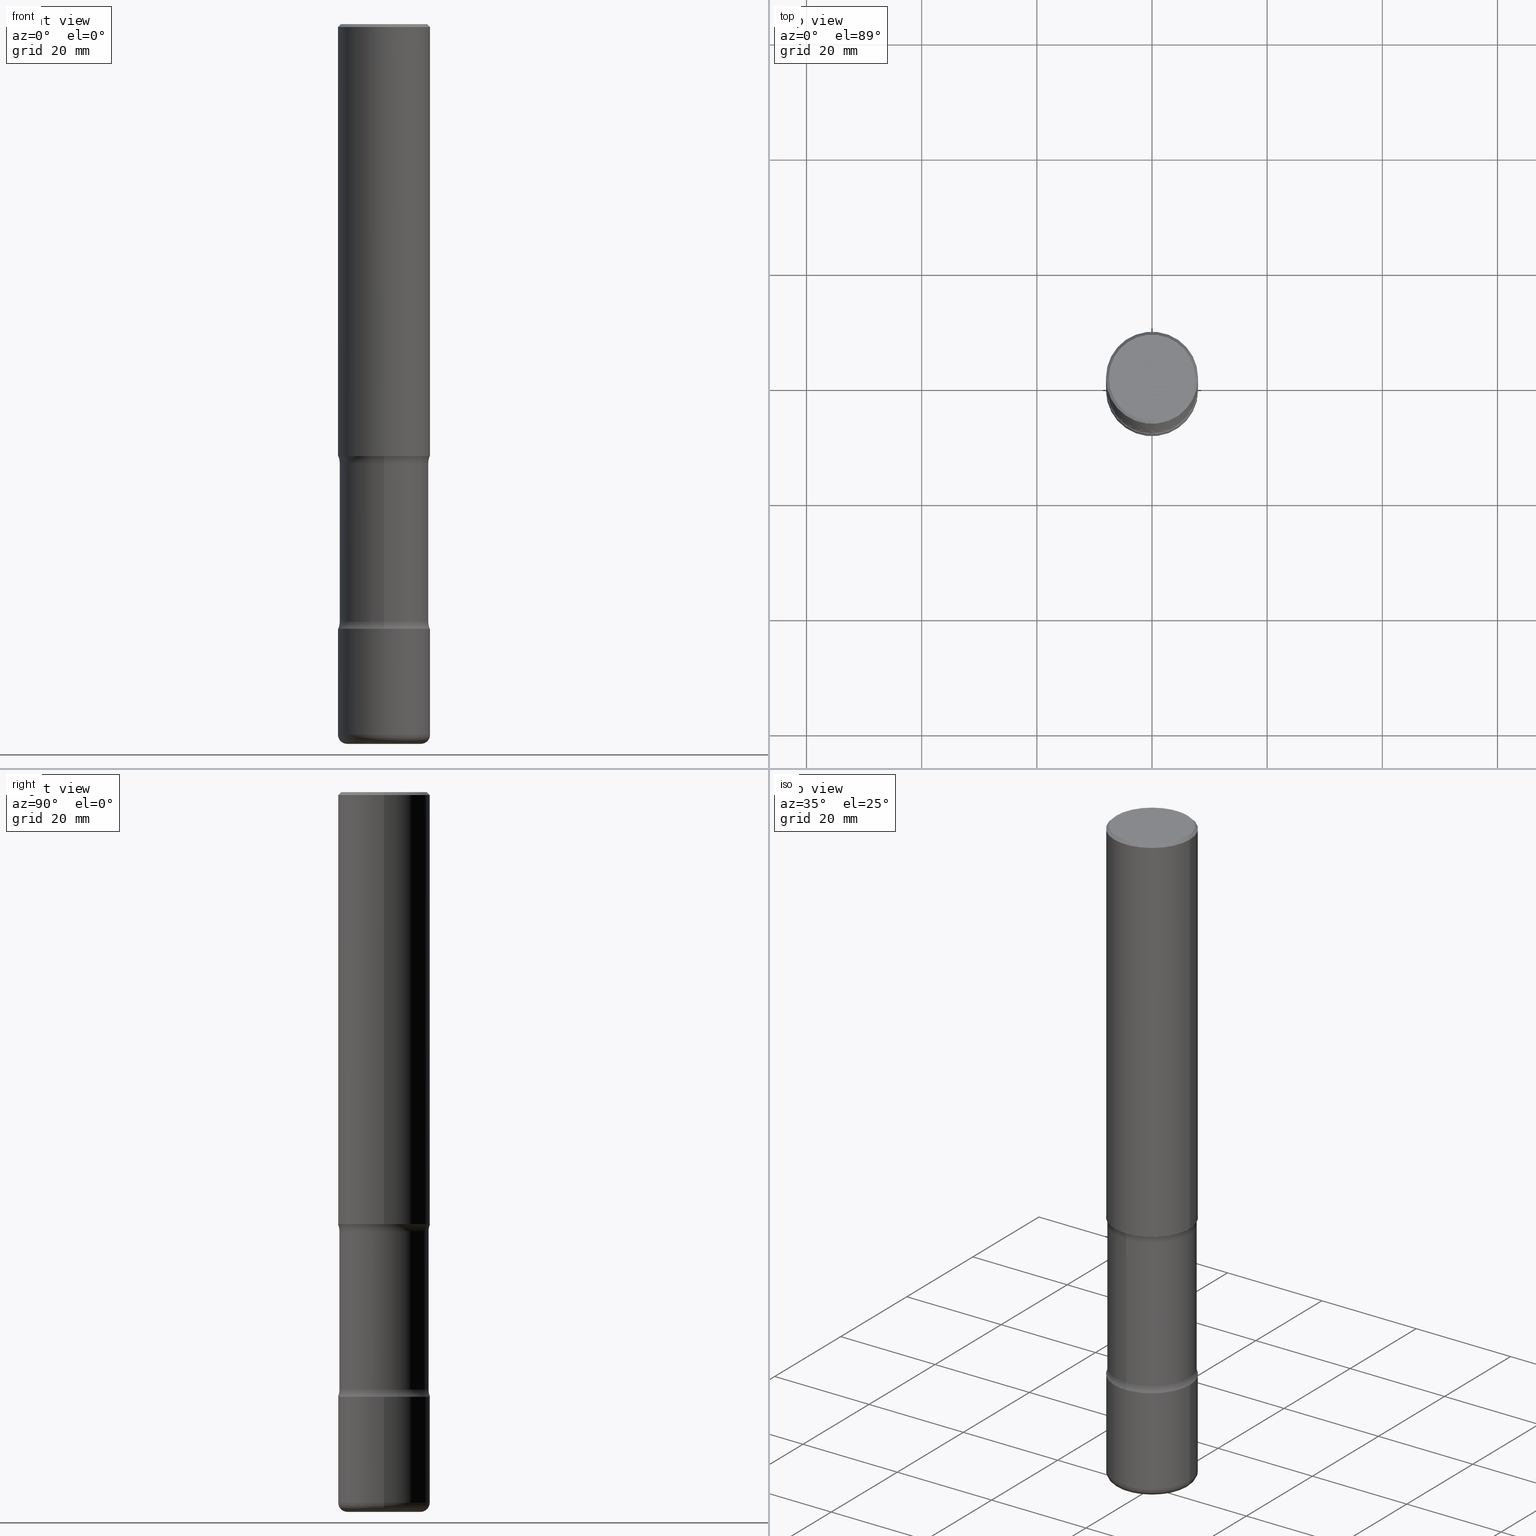
[diagram: canonical four-view strip — front | top / right | iso, engineering-drawing reading convention]
A machine part, canonical four-view strip (front | top / right | iso — engineering-drawing reading convention). The complete STEP part file that produces these views, byte-faithful:
ISO-10303-21;
HEADER;
FILE_DESCRIPTION (( 'STEP AP203' ),
    '1' );
FILE_NAME ('44967.STEP',
    '2024-03-02T04:06:10',
    ( '' ),
    ( '' ),
    'SwSTEP 2.0',
    'SolidWorks 2023',
    '' );
FILE_SCHEMA (( 'CONFIG_CONTROL_DESIGN' ));
ENDSEC;

DATA;
#1 = CARTESIAN_POINT ( 'NONE',  ( 9.989807918014305530E-29, -1.426279813349370412E-14, -4.085027743043726289 ) ) ;
#2 = AXIS2_PLACEMENT_3D ( 'NONE', #366, #327, #506 ) ;
#3 = ORIENTED_EDGE ( 'NONE', *, *, #88, .T. ) ;
#4 = ADVANCED_FACE ( 'NONE', ( #23 ), #205, .F. ) ;
#5 = DIRECTION ( 'NONE',  ( -1.000000000000000000, 7.105427357600990815E-15, 0.000000000000000000 ) ) ;
#6 =( NAMED_UNIT ( * ) SI_UNIT ( $, .STERADIAN. ) SOLID_ANGLE_UNIT ( ) );
#7 = EDGE_CURVE ( 'NONE', #151, #64, #279, .T. ) ;
#8 = AXIS2_PLACEMENT_3D ( 'NONE', #214, #400, #37 ) ;
#9 = TOROIDAL_SURFACE ( 'NONE', #196, 0.4300000000000000488, 0.1250000000000000000 ) ;
#10 = ORIENTED_EDGE ( 'NONE', *, *, #482, .T. ) ;
#11 = DIRECTION ( 'NONE',  ( -2.445468806185136877E-29, 3.491481338843145188E-15, 1.000000000000000000 ) ) ;
#12 = ORIENTED_EDGE ( 'NONE', *, *, #372, .F. ) ;
#13 = CARTESIAN_POINT ( 'NONE',  ( 7.202412656765479231E-29, -1.067802569216027239E-14, -3.001672256956273710 ) ) ;
#14 = CARTESIAN_POINT ( 'NONE',  ( 3.002673951405194792E-15, 0.4299999999999857825, -4.085027743043728066 ) ) ;
#15 = ORIENTED_EDGE ( 'NONE', *, *, #336, .T. ) ;
#16 = PRODUCT_RELATED_PRODUCT_CATEGORY ( 'detail', '', ( #516 ) ) ;
#17 = CLOSED_SHELL ( 'NONE', ( #329, #283, #200, #82, #66, #450 ) ) ;
#18 = AXIS2_PLACEMENT_3D ( 'NONE', #408, #103, #271 ) ;
#19 = ORIENTED_EDGE ( 'NONE', *, *, #472, .T. ) ;
#20 = EDGE_LOOP ( 'NONE', ( #521, #120 ) ) ;
#21 = CARTESIAN_POINT ( 'NONE',  ( 2.129803616694432752E-15, 0.3049999999999830069, -4.921299999999999564 ) ) ;
#22 = APPROVAL_STATUS ( 'not_yet_approved' ) ;
#23 = FACE_OUTER_BOUND ( 'NONE', #20, .T. ) ;
#24 = CARTESIAN_POINT ( 'NONE',  ( -0.3149500000000002298, -2.951883515780010590E-15, -2.952799999999999869 ) ) ;
#25 = APPROVAL_DATE_TIME ( #423, #398 ) ;
#26 = ADVANCED_FACE ( 'NONE', ( #132 ), #288, .T. ) ;
#27 = AXIS2_PLACEMENT_3D ( 'NONE', #71, #412, #536 ) ;
#28 = CARTESIAN_POINT ( 'NONE',  ( 3.002673951405166393E-15, 0.4299999999999893352, -3.001672256956275042 ) ) ;
#29 = EDGE_CURVE ( 'NONE', #455, #424, #147, .T. ) ;
#30 = DIRECTION ( 'NONE',  ( -6.982962677686264344E-15, -1.000000000000000000, 0.000000000000000000 ) ) ;
#31 = AXIS2_PLACEMENT_3D ( 'NONE', #402, #351, #40 ) ;
#32 = AXIS2_PLACEMENT_3D ( 'NONE', #452, #57, #323 ) ;
#33 = AXIS2_PLACEMENT_3D ( 'NONE', #301, #479, #438 ) ;
#34 = DIRECTION ( 'NONE',  ( 0.7071067811865472397, -7.319954787623254468E-15, -0.7071067811865477948 ) ) ;
#35 = FACE_OUTER_BOUND ( 'NONE', #70, .T. ) ;
#36 = ORIENTED_EDGE ( 'NONE', *, *, #173, .F. ) ;
#37 = DIRECTION ( 'NONE',  ( 6.982962677686265922E-15, 1.000000000000000000, -3.469564049740289220E-15 ) ) ;
#38 = TOROIDAL_SURFACE ( 'NONE', #363, 0.4300000000000000488, 0.1250000000000000000 ) ;
#39 = PERSON_AND_ORGANIZATION ( #90, #290 ) ;
#40 = DIRECTION ( 'NONE',  ( 1.000000000000000000, -6.982962677686267499E-15, 4.876053491004737710E-29 ) ) ;
#41 = EDGE_CURVE ( 'NONE', #72, #64, #560, .T. ) ;
#42 = DIRECTION ( 'NONE',  ( 1.000000000000000000, -6.982962677686264344E-15, 0.000000000000000000 ) ) ;
#43 = MANIFOLD_SOLID_BREP ( 'Body-Move/Copy2[2]', #75 ) ;
#44 =( NAMED_UNIT ( * ) PLANE_ANGLE_UNIT ( ) SI_UNIT ( $, .RADIAN. ) );
#45 = DIRECTION ( 'NONE',  ( 6.982962677686265922E-15, 1.000000000000000000, -3.316831827833398617E-15 ) ) ;
#46 = ORIENTED_EDGE ( 'NONE', *, *, #168, .T. ) ;
#47 = AXIS2_PLACEMENT_3D ( 'NONE', #193, #374, #510 ) ;
#48 = APPROVAL_PERSON_ORGANIZATION ( #95, #554, #53 ) ;
#49 = CARTESIAN_POINT ( 'NONE',  ( 4.890937612370289799E-31, -6.982962677686315028E-17, -0.02000000000000006981 ) ) ;
#50 = DIRECTION ( 'NONE',  ( 1.000000000000000000, -6.982962677686267499E-15, 4.876053491004737710E-29 ) ) ;
#51 = CARTESIAN_POINT ( 'NONE',  ( 1.010932349788873450E-28, -1.443343470664368071E-14, -4.133899999999999686 ) ) ;
#52 = DIRECTION ( 'NONE',  ( 1.000000000000000000, -6.982962677686265922E-15, 4.876176775795935793E-29 ) ) ;
#53 = APPROVAL_ROLE ( '' ) ;
#54 = VERTEX_POINT ( 'NONE', #255 ) ;
#55 = CC_DESIGN_PERSON_AND_ORGANIZATION_ASSIGNMENT ( #80, #546, ( #486 ) ) ;
#56 = EDGE_LOOP ( 'NONE', ( #504, #500, #354, #442 ) ) ;
#57 = DIRECTION ( 'NONE',  ( -2.567425907890857890E-29, 3.316831827833398617E-15, 1.000000000000000000 ) ) ;
#58 = EDGE_LOOP ( 'NONE', ( #210, #322, #136, #219 ) ) ;
#59 = CARTESIAN_POINT ( 'NONE',  ( -2.160713844398075521E-15, -0.3149500000000107769, -2.952799999999998537 ) ) ;
#60 = TOROIDAL_SURFACE ( 'NONE', #264, 0.4299999999999999933, 0.1249999999999999029 ) ;
#61 = CARTESIAN_POINT ( 'NONE',  ( -2.126582866859130004E-15, -0.3050000000000142597, -4.085027743043725401 ) ) ;
#62 = TOROIDAL_SURFACE ( 'NONE', #269, 0.2519500000000002848, 0.06299999999999993106 ) ;
#63 = DATE_TIME_ROLE ( 'classification_date' ) ;
#64 = VERTEX_POINT ( 'NONE', #394 ) ;
#65 = ORIENTED_EDGE ( 'NONE', *, *, #128, .F. ) ;
#66 = ADVANCED_FACE ( 'NONE', ( #35 ), #470, .T. ) ;
#67 = CARTESIAN_POINT ( 'NONE',  ( -0.3149500000000002298, 2.237854346276437168E-15, -1.549218606675783517E-29 ) ) ;
#68 = COORDINATED_UNIVERSAL_TIME_OFFSET ( 5, 0, .BEHIND. ) ;
#69 = VERTEX_POINT ( 'NONE', #512 ) ;
#70 = EDGE_LOOP ( 'NONE', ( #460, #538, #239, #543 ) ) ;
#71 = CARTESIAN_POINT ( 'NONE',  ( 0.000000000000000000, 0.000000000000000000, 0.000000000000000000 ) ) ;
#72 = VERTEX_POINT ( 'NONE', #427 ) ;
#73 = ORIENTED_EDGE ( 'NONE', *, *, #128, .T. ) ;
#74 = FACE_OUTER_BOUND ( 'NONE', #275, .T. ) ;
#75 = CLOSED_SHELL ( 'NONE', ( #533, #26, #359, #4, #258, #206 ) ) ;
#76 = PERSON_AND_ORGANIZATION_ROLE ( 'creator' ) ;
#77 = LINE ( 'NONE', #559, #101 ) ;
#78 = CIRCLE ( 'NONE', #289, 0.1250000000000000000 ) ;
#79 = APPROVAL_PERSON_ORGANIZATION ( #232, #398, #370 ) ;
#80 = PERSON_AND_ORGANIZATION ( #90, #290 ) ;
#81 = DIRECTION ( 'NONE',  ( -2.445468806185136597E-29, 3.491481338843145583E-15, 1.000000000000000000 ) ) ;
#82 = ADVANCED_FACE ( 'NONE', ( #122 ), #123, .T. ) ;
#83 = DIRECTION ( 'NONE',  ( 6.982962677686266711E-15, 1.000000000000000000, -3.582751467100673306E-15 ) ) ;
#84 = ORIENTED_EDGE ( 'NONE', *, *, #446, .F. ) ;
#85 = DIRECTION ( 'NONE',  ( -2.445468806185136597E-29, 3.491481338843145583E-15, 1.000000000000000000 ) ) ;
#86 = DIRECTION ( 'NONE',  ( 2.445468806185136597E-29, -3.491481338843145583E-15, -1.000000000000000000 ) ) ;
#87 = CIRCLE ( 'NONE', #437, 0.2949499999999998234 ) ;
#88 = EDGE_CURVE ( 'NONE', #368, #151, #164, .T. ) ;
#89 = ADVANCED_FACE ( 'NONE', ( #137 ), #60, .F. ) ;
#90 = PERSON ( 'UNSPECIFIED', 'UNSPECIFIED', 'UNSPECIFIED', ('UNSPECIFIED'), ('UNSPECIFIED'), ('UNSPECIFIED') ) ;
#91 = DIRECTION ( 'NONE',  ( -2.445468806185136597E-29, 3.491481338843145583E-15, 1.000000000000000000 ) ) ;
#92 = CIRCLE ( 'NONE', #530, 0.1250000000000000000 ) ;
#93 = PRODUCT_DEFINITION ( 'UNKNOWN', '', #486, #337 ) ;
#94 = CIRCLE ( 'NONE', #241, 0.06299999999999994493 ) ;
#95 = PERSON_AND_ORGANIZATION ( #90, #290 ) ;
#96 = CARTESIAN_POINT ( 'NONE',  ( -2.092451889320195532E-15, -0.3050000000000170908, -4.921299999999997787 ) ) ;
#97 = FACE_OUTER_BOUND ( 'NONE', #159, .T. ) ;
#98 = DIRECTION ( 'NONE',  ( -2.445468806185136597E-29, 3.491481338843145583E-15, 1.000000000000000000 ) ) ;
#99 = ORIENTED_EDGE ( 'NONE', *, *, #353, .T. ) ;
#100 = CARTESIAN_POINT ( 'NONE',  ( 2.129803616694410664E-15, 0.3049999999999857270, -4.085027743043728066 ) ) ;
#101 = VECTOR ( 'NONE', #198, 39.37007874015748143 ) ;
#102 = LOCAL_TIME ( 23, 6, 10.00000000000000000, #68 ) ;
#103 = DIRECTION ( 'NONE',  ( 2.567425907890858451E-29, -3.316831827833398617E-15, -1.000000000000000000 ) ) ;
#104 = CARTESIAN_POINT ( 'NONE',  ( 0.3149500000000002298, -2.199284095337291449E-15, 1.535751875536930971E-29 ) ) ;
#105 = EDGE_CURVE ( 'NONE', #542, #72, #87, .T. ) ;
#106 = ORIENTED_EDGE ( 'NONE', *, *, #213, .F. ) ;
#107 = FACE_OUTER_BOUND ( 'NONE', #371, .T. ) ;
#108 = PLANE ( 'NONE',  #280 ) ;
#109 = DIRECTION ( 'NONE',  ( -0.7071067811865472397, 2.468850131082253905E-15, -0.7071067811865477948 ) ) ;
#110 = CARTESIAN_POINT ( 'NONE',  ( -2.160713844398043177E-15, -0.3149500000000144961, -4.133899999999998798 ) ) ;
#111 = EDGE_CURVE ( 'NONE', #267, #455, #92, .T. ) ;
#112 = CIRCLE ( 'NONE', #8, 0.3149500000000003408 ) ;
#113 = DIRECTION ( 'NONE',  ( 2.567425907890858451E-29, -3.316831827833398617E-15, -1.000000000000000000 ) ) ;
#114 = DIRECTION ( 'NONE',  ( -2.445468806185136597E-29, 3.491481338843145583E-15, 1.000000000000000000 ) ) ;
#115 = CIRCLE ( 'NONE', #508, 0.1249999999999999029 ) ;
#116 = PERSON_AND_ORGANIZATION_ROLE ( 'classification_officer' ) ;
#117 = CIRCLE ( 'NONE', #380, 0.3149500000000002853 ) ;
#118 = EDGE_LOOP ( 'NONE', ( #160, #364 ) ) ;
#119 = EDGE_LOOP ( 'NONE', ( #325, #185, #451, #84 ) ) ;
#120 = ORIENTED_EDGE ( 'NONE', *, *, #162, .T. ) ;
#121 = COORDINATED_UNIVERSAL_TIME_OFFSET ( 5, 0, .BEHIND. ) ;
#122 = FACE_OUTER_BOUND ( 'NONE', #409, .T. ) ;
#123 = TOROIDAL_SURFACE ( 'NONE', #514, 0.2519500000000002848, 0.06299999999999993106 ) ;
#124 = DATE_AND_TIME ( #553, #317 ) ;
#125 = CARTESIAN_POINT ( 'NONE',  ( 0.000000000000000000, 0.000000000000000000, 0.000000000000000000 ) ) ;
#126 = AXIS2_PLACEMENT_3D ( 'NONE', #411, #113, #156 ) ;
#127 = CARTESIAN_POINT ( 'NONE',  ( 4.890937612370289799E-31, -6.982962677686315028E-17, -0.02000000000000006981 ) ) ;
#128 = EDGE_CURVE ( 'NONE', #367, #266, #413, .T. ) ;
#129 = APPROVAL_PERSON_ORGANIZATION ( #201, #439, #463 ) ;
#130 = PRODUCT_DEFINITION_SHAPE ( 'NONE', 'NONE',  #93 ) ;
#131 = CARTESIAN_POINT ( 'NONE',  ( 1.213091465776199422E-28, -1.704510808787969270E-14, -4.921299999999998676 ) ) ;
#132 = FACE_OUTER_BOUND ( 'NONE', #119, .T. ) ;
#133 = CC_DESIGN_DATE_AND_TIME_ASSIGNMENT ( #282, #63, ( #212 ) ) ;
#134 = AXIS2_PLACEMENT_3D ( 'NONE', #125, #338, #469 ) ;
#135 = LOCAL_TIME ( 23, 6, 10.00000000000000000, #503 ) ;
#136 = ORIENTED_EDGE ( 'NONE', *, *, #432, .F. ) ;
#137 = FACE_OUTER_BOUND ( 'NONE', #285, .T. ) ;
#138 = CARTESIAN_POINT ( 'NONE',  ( 9.989807918014305530E-29, -1.426279813349370412E-14, -4.085027743043726289 ) ) ;
#139 = FACE_OUTER_BOUND ( 'NONE', #491, .T. ) ;
#140 = LINE ( 'NONE', #96, #328 ) ;
#141 = AXIS2_PLACEMENT_3D ( 'NONE', #167, #297, #476 ) ;
#142 = CC_DESIGN_APPROVAL ( #554, ( #93 ) ) ;
#143 = DIRECTION ( 'NONE',  ( 6.982962677686265922E-15, 1.000000000000000000, -3.316831827833398617E-15 ) ) ;
#144 = FACE_OUTER_BOUND ( 'NONE', #419, .T. ) ;
#145 = ORIENTED_EDGE ( 'NONE', *, *, #416, .F. ) ;
#146 = CARTESIAN_POINT ( 'NONE',  ( 7.220980290903470182E-29, -1.030964609733603853E-14, -2.952799999999999869 ) ) ;
#147 = CIRCLE ( 'NONE', #183, 0.3049999999999999933 ) ;
#148 = AXIS2_PLACEMENT_3D ( 'NONE', #13, #149, #281 ) ;
#149 = DIRECTION ( 'NONE',  ( 2.567425907890858451E-29, -3.316831827833398617E-15, -1.000000000000000000 ) ) ;
#150 = DIRECTION ( 'NONE',  ( -1.000000000000000000, 6.982962677686265922E-15, -4.876176775795935793E-29 ) ) ;
#151 = VERTEX_POINT ( 'NONE', #260 ) ;
#152 = EDGE_CURVE ( 'NONE', #270, #360, #483, .T. ) ;
#153 = VERTEX_POINT ( 'NONE', #172 ) ;
#154 = DIRECTION ( 'NONE',  ( 6.860497997771531562E-15, 1.000000000000000000, 0.000000000000000000 ) ) ;
#155 = FACE_OUTER_BOUND ( 'NONE', #381, .T. ) ;
#156 = DIRECTION ( 'NONE',  ( 6.982962677686265922E-15, 1.000000000000000000, -3.469564049740289220E-15 ) ) ;
#157 = AXIS2_PLACEMENT_3D ( 'NONE', #314, #188, #369 ) ;
#158 = ORIENTED_EDGE ( 'NONE', *, *, #111, .F. ) ;
#159 = EDGE_LOOP ( 'NONE', ( #73, #99, #558, #237 ) ) ;
#160 = ORIENTED_EDGE ( 'NONE', *, *, #152, .F. ) ;
#161 = EDGE_LOOP ( 'NONE', ( #222, #3, #464, #477 ) ) ;
#162 = EDGE_CURVE ( 'NONE', #72, #542, #228, .T. ) ;
#163 = DIRECTION ( 'NONE',  ( 6.982962677686265133E-15, 1.000000000000000000, -3.582751467100672517E-15 ) ) ;
#164 = LINE ( 'NONE', #247, #261 ) ;
#165 = AXIS2_PLACEMENT_3D ( 'NONE', #529, #98, #524 ) ;
#166 = CIRCLE ( 'NONE', #148, 0.3050000000000001044 ) ;
#167 = CARTESIAN_POINT ( 'NONE',  ( 1.010932349788873450E-28, -1.443343470664368071E-14, -4.133899999999999686 ) ) ;
#168 = EDGE_CURVE ( 'NONE', #331, #54, #112, .T. ) ;
#169 = DIRECTION ( 'NONE',  ( 6.982962677686265922E-15, 1.000000000000000000, -3.316831827833398617E-15 ) ) ;
#170 = DIRECTION ( 'NONE',  ( 1.000000000000000000, -6.982962677686258822E-15, 0.000000000000000000 ) ) ;
#171 = CIRCLE ( 'NONE', #141, 0.3149500000000001743 ) ;
#172 = CARTESIAN_POINT ( 'NONE',  ( -2.126582866859160770E-15, -0.3050000000000108180, -3.001672256956272378 ) ) ;
#173 = EDGE_CURVE ( 'NONE', #153, #455, #140, .T. ) ;
#174 = DIRECTION ( 'NONE',  ( -2.445468806185136877E-29, 3.491481338843145188E-15, 1.000000000000000000 ) ) ;
#175 = AXIS2_PLACEMENT_3D ( 'NONE', #429, #81, #208 ) ;
#176 = AXIS2_PLACEMENT_3D ( 'NONE', #478, #528, #397 ) ;
#177 = DIRECTION ( 'NONE',  ( 1.000000000000000000, -6.860497997771530774E-15, 4.842937719270450124E-29 ) ) ;
#178 = EDGE_CURVE ( 'NONE', #360, #266, #94, .T. ) ;
#179 = CARTESIAN_POINT ( 'NONE',  ( 9.983847599202101310E-29, -1.427133364927305841E-14, -4.085027743043726289 ) ) ;
#180 = DIRECTION ( 'NONE',  ( -6.982962677686266711E-15, -1.000000000000000000, 0.000000000000000000 ) ) ;
#181 = DIRECTION ( 'NONE',  ( 2.438088387897960049E-29, -3.491481338843145188E-15, -1.000000000000000000 ) ) ;
#182 = ORIENTED_EDGE ( 'NONE', *, *, #223, .T. ) ;
#183 = AXIS2_PLACEMENT_3D ( 'NONE', #252, #433, #83 ) ;
#184 = CIRCLE ( 'NONE', #2, 0.3050000000000001044 ) ;
#185 = ORIENTED_EDGE ( 'NONE', *, *, #41, .T. ) ;
#186 = EDGE_CURVE ( 'NONE', #64, #151, #207, .T. ) ;
#187 = CARTESIAN_POINT ( 'NONE',  ( -0.2519500000000002848, -1.505861206616321089E-14, -4.921300000000000452 ) ) ;
#188 = DIRECTION ( 'NONE',  ( 2.567425907890858451E-29, -3.316831827833398617E-15, -1.000000000000000000 ) ) ;
#189 = DIRECTION ( 'NONE',  ( -2.445468806185136597E-29, 3.491481338843145583E-15, 1.000000000000000000 ) ) ;
#190 = APPROVAL_STATUS ( 'not_yet_approved' ) ;
#191 = CARTESIAN_POINT ( 'NONE',  ( 0.000000000000000000, 0.000000000000000000, 0.000000000000000000 ) ) ;
#192 = DIRECTION ( 'NONE',  ( -6.982962677686266711E-15, -1.000000000000000000, 3.491481338843145583E-15 ) ) ;
#193 = CARTESIAN_POINT ( 'NONE',  ( -1.777441011589207821E-28, -5.987123526913351661E-14, -4.921299999999999564 ) ) ;
#194 = ORIENTED_EDGE ( 'NONE', *, *, #7, .F. ) ;
#195 = ORIENTED_EDGE ( 'NONE', *, *, #178, .F. ) ;
#196 = AXIS2_PLACEMENT_3D ( 'NONE', #138, #435, #143 ) ;
#197 = COORDINATED_UNIVERSAL_TIME_OFFSET ( 5, 0, .BEHIND. ) ;
#198 = DIRECTION ( 'NONE',  ( -2.445468806185136877E-29, 3.491481338843145188E-15, 1.000000000000000000 ) ) ;
#199 = ORIENTED_EDGE ( 'NONE', *, *, #111, .T. ) ;
#200 = ADVANCED_FACE ( 'NONE', ( #480 ), #440, .T. ) ;
#201 = PERSON_AND_ORGANIZATION ( #90, #290 ) ;
#202 = CYLINDRICAL_SURFACE ( 'NONE', #218, 0.3050000000000000488 ) ;
#203 = ADVANCED_FACE ( 'NONE', ( #284 ), #462, .T. ) ;
#204 = DATE_TIME_ROLE ( 'creation_date' ) ;
#205 = PLANE ( 'NONE',  #395 ) ;
#206 = ADVANCED_FACE ( 'NONE', ( #155 ), #545, .T. ) ;
#207 = CIRCLE ( 'NONE', #176, 0.3149499999999998967 ) ;
#208 = DIRECTION ( 'NONE',  ( 1.000000000000000000, -6.982962677686267499E-15, 4.876176775795935232E-29 ) ) ;
#209 = DIRECTION ( 'NONE',  ( 7.105427357601001859E-15, 1.000000000000000000, -3.491481338843145583E-15 ) ) ;
#210 = ORIENTED_EDGE ( 'NONE', *, *, #213, .T. ) ;
#211 = AXIS2_PLACEMENT_3D ( 'NONE', #49, #225, #505 ) ;
#212 = SECURITY_CLASSIFICATION ( '', '', #238 ) ;
#213 = EDGE_CURVE ( 'NONE', #69, #153, #184, .T. ) ;
#214 = CARTESIAN_POINT ( 'NONE',  ( 7.076936758078842679E-29, -1.051592463478965167E-14, -2.952799999999999869 ) ) ;
#215 = DIRECTION ( 'NONE',  ( 2.567425907890858451E-29, -3.316831827833398617E-15, -1.000000000000000000 ) ) ;
#216 = CARTESIAN_POINT ( 'NONE',  ( 1.203488563587891594E-28, -1.718262711284877655E-14, -4.921300000000000452 ) ) ;
#217 = CC_DESIGN_PERSON_AND_ORGANIZATION_ASSIGNMENT ( #291, #324, ( #486 ) ) ;
#218 = AXIS2_PLACEMENT_3D ( 'NONE', #131, #254, #163 ) ;
#219 = ORIENTED_EDGE ( 'NONE', *, *, #454, .F. ) ;
#220 = DIRECTION ( 'NONE',  ( 2.567425907890857890E-29, -3.316831827833398617E-15, -1.000000000000000000 ) ) ;
#221 = DIRECTION ( 'NONE',  ( -2.445468806185136877E-29, 3.491481338843145188E-15, 1.000000000000000000 ) ) ;
#222 = ORIENTED_EDGE ( 'NONE', *, *, #292, .T. ) ;
#223 = EDGE_CURVE ( 'NONE', #356, #424, #78, .T. ) ;
#224 = EDGE_LOOP ( 'NONE', ( #12, #273, #46, #489 ) ) ;
#225 = DIRECTION ( 'NONE',  ( 2.445468806185136597E-29, -3.491481338843145583E-15, -1.000000000000000000 ) ) ;
#226 = CARTESIAN_POINT ( 'NONE',  ( -0.3149500000000002853, -1.472480944222522007E-14, -4.858300000000000729 ) ) ;
#227 = ORIENTED_EDGE ( 'NONE', *, *, #372, .T. ) ;
#228 = CIRCLE ( 'NONE', #31, 0.2949499999999998234 ) ;
#229 = AXIS2_PLACEMENT_3D ( 'NONE', #245, #401, #42 ) ;
#230 = EDGE_CURVE ( 'NONE', #367, #420, #319, .T. ) ;
#231 = CARTESIAN_POINT ( 'NONE',  ( 1.203488563587891594E-28, -1.718262711284877655E-14, -4.921300000000000452 ) ) ;
#232 = PERSON_AND_ORGANIZATION ( #90, #290 ) ;
#233 = ORIENTED_EDGE ( 'NONE', *, *, #29, .T. ) ;
#234 = MANIFOLD_SOLID_BREP ( 'Body-Move/Copy2[4]', #315 ) ;
#235 = DIRECTION ( 'NONE',  ( 6.982962677686265922E-15, 1.000000000000000000, -3.316831827833398617E-15 ) ) ;
#236 = CALENDAR_DATE ( 2024, 1, 3 ) ;
#237 = ORIENTED_EDGE ( 'NONE', *, *, #230, .F. ) ;
#238 = SECURITY_CLASSIFICATION_LEVEL ( 'unclassified' ) ;
#239 = ORIENTED_EDGE ( 'NONE', *, *, #230, .T. ) ;
#240 = ORIENTED_EDGE ( 'NONE', *, *, #488, .T. ) ;
#241 = AXIS2_PLACEMENT_3D ( 'NONE', #348, #209, #5 ) ;
#242 = CALENDAR_DATE ( 2024, 1, 3 ) ;
#243 = MANIFOLD_SOLID_BREP ( 'Body-Move/Copy2[1]', #17 ) ;
#244 = CARTESIAN_POINT ( 'NONE',  ( -0.3149500000000001743, -1.346019490129623240E-14, -4.133899999999999686 ) ) ;
#245 = CARTESIAN_POINT ( 'NONE',  ( 7.220980290903470182E-29, -1.030964609733603853E-14, -2.952799999999999869 ) ) ;
#246 = CALENDAR_DATE ( 2024, 1, 3 ) ;
#247 = CARTESIAN_POINT ( 'NONE',  ( -0.3149500000000000077, 2.237854346276435590E-15, -1.549218606675782676E-29 ) ) ;
#248 = EDGE_CURVE ( 'NONE', #368, #525, #389, .T. ) ;
#249 = CARTESIAN_POINT ( 'NONE',  ( 1.188082110108925210E-28, -1.696266378850165605E-14, -4.858300000000000729 ) ) ;
#250 = CARTESIAN_POINT ( 'NONE',  ( 1.010932349788873450E-28, -1.443343470664368071E-14, -4.133899999999999686 ) ) ;
#251 = CIRCLE ( 'NONE', #378, 0.3149500000000001743 ) ;
#252 = CARTESIAN_POINT ( 'NONE',  ( 9.983847599202101310E-29, -1.427133364927305841E-14, -4.085027743043726289 ) ) ;
#253 = CARTESIAN_POINT ( 'NONE',  ( 1.188082110108925210E-28, -1.696266378850165605E-14, -4.858300000000000729 ) ) ;
#254 = DIRECTION ( 'NONE',  ( 2.567425907890858451E-29, -3.316831827833398617E-15, -1.000000000000000000 ) ) ;
#255 = CARTESIAN_POINT ( 'NONE',  ( 2.199284095337362446E-15, 0.3149499999999899047, -2.952800000000000757 ) ) ;
#256 = ORIENTED_EDGE ( 'NONE', *, *, #383, .F. ) ;
#257 =( CONVERSION_BASED_UNIT ( 'INCH', #259 ) LENGTH_UNIT ( ) NAMED_UNIT ( #293 ) );
#258 = ADVANCED_FACE ( 'NONE', ( #502 ), #108, .F. ) ;
#259 = LENGTH_MEASURE_WITH_UNIT ( LENGTH_MEASURE( 0.02539999999999999897 ), #532 );
#260 = CARTESIAN_POINT ( 'NONE',  ( -0.3149499999999998967, 2.129454468560425784E-15, -0.02000000000000006981 ) ) ;
#261 = VECTOR ( 'NONE', #174, 39.37007874015748143 ) ;
#262 = CONICAL_SURFACE ( 'NONE', #211, 0.3149499999999998967, 0.7853981633974479459 ) ;
#263 = CC_DESIGN_SECURITY_CLASSIFICATION ( #212, ( #486 ) ) ;
#264 = AXIS2_PLACEMENT_3D ( 'NONE', #444, #308, #45 ) ;
#265 = CC_DESIGN_PERSON_AND_ORGANIZATION_ASSIGNMENT ( #335, #76, ( #93 ) ) ;
#266 = VERTEX_POINT ( 'NONE', #226 ) ;
#267 = VERTEX_POINT ( 'NONE', #110 ) ;
#268 = PLANE ( 'NONE',  #32 ) ;
#269 = AXIS2_PLACEMENT_3D ( 'NONE', #253, #352, #393 ) ;
#270 = VERTEX_POINT ( 'NONE', #471 ) ;
#271 = DIRECTION ( 'NONE',  ( 6.982962677686264344E-15, 1.000000000000000000, -3.469564049740291192E-15 ) ) ;
#272 = DIRECTION ( 'NONE',  ( -2.438088387897960049E-29, 3.491481338843145188E-15, 1.000000000000000000 ) ) ;
#273 = ORIENTED_EDGE ( 'NONE', *, *, #392, .T. ) ;
#274 = DIRECTION ( 'NONE',  ( 2.567425907890858451E-29, -3.316831827833398617E-15, -1.000000000000000000 ) ) ;
#275 = EDGE_LOOP ( 'NONE', ( #309, #311, #65, #145 ) ) ;
#276 = EDGE_CURVE ( 'NONE', #267, #356, #171, .T. ) ;
#277 = DIRECTION ( 'NONE',  ( 1.000000000000000000, -6.982962677686292743E-15, 0.000000000000000000 ) ) ;
#278 = COORDINATED_UNIVERSAL_TIME_OFFSET ( 5, 0, .BEHIND. ) ;
#279 = CIRCLE ( 'NONE', #388, 0.3149499999999998967 ) ;
#280 = AXIS2_PLACEMENT_3D ( 'NONE', #146, #272, #52 ) ;
#281 = DIRECTION ( 'NONE',  ( 6.982962677686265133E-15, 1.000000000000000000, -3.582751467100671728E-15 ) ) ;
#282 = DATE_AND_TIME ( #246, #135 ) ;
#283 = ADVANCED_FACE ( 'NONE', ( #74 ), #62, .T. ) ;
#284 = FACE_OUTER_BOUND ( 'NONE', #414, .T. ) ;
#285 = EDGE_LOOP ( 'NONE', ( #404, #106, #240, #19 ) ) ;
#286 = ORIENTED_EDGE ( 'NONE', *, *, #88, .F. ) ;
#287 = APPROVAL_DATE_TIME ( #468, #554 ) ;
#288 = CONICAL_SURFACE ( 'NONE', #340, 0.3149499999999998967, 0.7853981633974479459 ) ;
#289 = AXIS2_PLACEMENT_3D ( 'NONE', #14, #498, #180 ) ;
#290 = ORGANIZATION ( 'UNSPECIFIED', 'UNSPECIFIED', '' ) ;
#291 = PERSON_AND_ORGANIZATION ( #90, #290 ) ;
#292 = EDGE_CURVE ( 'NONE', #525, #368, #550, .T. ) ;
#293 = DIMENSIONAL_EXPONENTS ( 1.000000000000000000, 0.000000000000000000, 0.000000000000000000, 0.000000000000000000, 0.000000000000000000, 0.000000000000000000, 0.000000000000000000 ) ;
#294 = CARTESIAN_POINT ( 'NONE',  ( 1.188082110108925210E-28, -1.696266378850165605E-14, -4.858300000000000729 ) ) ;
#295 = ORIENTED_EDGE ( 'NONE', *, *, #551, .F. ) ;
#296 = APPROVAL_STATUS ( 'not_yet_approved' ) ;
#297 = DIRECTION ( 'NONE',  ( 2.567425907890858451E-29, -3.316831827833398617E-15, -1.000000000000000000 ) ) ;
#298 = CARTESIAN_POINT ( 'NONE',  ( 0.3149500000000002298, -1.250893019267332998E-14, -2.952799999999999869 ) ) ;
#299 = DIRECTION ( 'NONE',  ( 2.438088387897960049E-29, -3.491481338843145188E-15, -1.000000000000000000 ) ) ;
#300 = ADVANCED_FACE ( 'NONE', ( #144 ), #38, .F. ) ;
#301 = CARTESIAN_POINT ( 'NONE',  ( 0.000000000000000000, 0.000000000000000000, 0.000000000000000000 ) ) ;
#302 = PERSON_AND_ORGANIZATION_ROLE ( 'design_owner' ) ;
#303 = VECTOR ( 'NONE', #34, 39.37007874015748143 ) ;
#304 = AXIS2_PLACEMENT_3D ( 'NONE', #540, #114, #358 ) ;
#305 = CC_DESIGN_PERSON_AND_ORGANIZATION_ASSIGNMENT ( #384, #116, ( #212 ) ) ;
#306 = DIRECTION ( 'NONE',  ( 1.000000000000000000, -6.982962677686263555E-15, 0.000000000000000000 ) ) ;
#307 = DIRECTION ( 'NONE',  ( 1.000000000000000000, -6.982962677686258822E-15, 0.000000000000000000 ) ) ;
#308 = DIRECTION ( 'NONE',  ( 2.567425907890858451E-29, -3.316831827833398617E-15, -1.000000000000000000 ) ) ;
#309 = ORIENTED_EDGE ( 'NONE', *, *, #152, .T. ) ;
#310 = FACE_OUTER_BOUND ( 'NONE', #349, .T. ) ;
#311 = ORIENTED_EDGE ( 'NONE', *, *, #178, .T. ) ;
#312 = DIRECTION ( 'NONE',  ( 2.567425907890858451E-29, -3.316831827833398617E-15, -1.000000000000000000 ) ) ;
#313 = FACE_OUTER_BOUND ( 'NONE', #56, .T. ) ;
#314 = CARTESIAN_POINT ( 'NONE',  ( 1.213091465776199422E-28, -1.704510808787969270E-14, -4.921299999999998676 ) ) ;
#315 = CLOSED_SHELL ( 'NONE', ( #526, #320, #343, #89, #345, #465, #300, #203 ) ) ;
#316 = AXIS2_PLACEMENT_3D ( 'NONE', #191, #441, #410 ) ;
#317 = LOCAL_TIME ( 23, 6, 10.00000000000000000, #197 ) ;
#318 = FACE_OUTER_BOUND ( 'NONE', #362, .T. ) ;
#319 = LINE ( 'NONE', #104, #330 ) ;
#320 = ADVANCED_FACE ( 'NONE', ( #139 ), #9, .F. ) ;
#321 = EDGE_LOOP ( 'NONE', ( #552, #492 ) ) ;
#322 = ORIENTED_EDGE ( 'NONE', *, *, #173, .T. ) ;
#323 = DIRECTION ( 'NONE',  ( -6.982962677686265922E-15, -1.000000000000000000, 3.316831827833398617E-15 ) ) ;
#324 = PERSON_AND_ORGANIZATION_ROLE ( 'design_supplier' ) ;
#325 = ORIENTED_EDGE ( 'NONE', *, *, #162, .F. ) ;
#326 = DIRECTION ( 'NONE',  ( 2.567425907890858451E-29, -3.316831827833398617E-15, -1.000000000000000000 ) ) ;
#327 = DIRECTION ( 'NONE',  ( 2.567425907890858451E-29, -3.316831827833398617E-15, -1.000000000000000000 ) ) ;
#328 = VECTOR ( 'NONE', #312, 39.37007874015748143 ) ;
#329 = ADVANCED_FACE ( 'NONE', ( #97 ), #522, .T. ) ;
#330 = VECTOR ( 'NONE', #221, 39.37007874015748143 ) ;
#331 = VERTEX_POINT ( 'NONE', #59 ) ;
#332 = DIRECTION ( 'NONE',  ( 1.000000000000000000, -6.982962677686265922E-15, 0.000000000000000000 ) ) ;
#333 = CARTESIAN_POINT ( 'NONE',  ( 0.3149499999999998967, -2.230543471175006266E-15, -0.02000000000000006981 ) ) ;
#334 = DIRECTION ( 'NONE',  ( -1.000000000000000000, 6.982962677686265922E-15, -4.883557194083112340E-29 ) ) ;
#335 = PERSON_AND_ORGANIZATION ( #90, #290 ) ;
#336 = EDGE_CURVE ( 'NONE', #360, #270, #515, .T. ) ;
#337 = DESIGN_CONTEXT ( 'detailed design', #428, 'design' ) ;
#338 = DIRECTION ( 'NONE',  ( -2.445468806185136597E-29, 3.491481338843145583E-15, 1.000000000000000000 ) ) ;
#339 = DIRECTION ( 'NONE',  ( 1.000000000000000000, -6.982962677686265133E-15, 4.883557194083112901E-29 ) ) ;
#340 = AXIS2_PLACEMENT_3D ( 'NONE', #127, #86, #344 ) ;
#341 = AXIS2_PLACEMENT_3D ( 'NONE', #51, #181, #150 ) ;
#342 = FACE_OUTER_BOUND ( 'NONE', #58, .T. ) ;
#343 = ADVANCED_FACE ( 'NONE', ( #527 ), #466, .F. ) ;
#344 = DIRECTION ( 'NONE',  ( -1.000000000000000000, 6.982962677686265922E-15, 0.000000000000000000 ) ) ;
#345 = ADVANCED_FACE ( 'NONE', ( #310 ), #422, .F. ) ;
#346 = VECTOR ( 'NONE', #326, 39.37007874015748143 ) ;
#347 = LOCAL_TIME ( 23, 6, 10.00000000000000000, #121 ) ;
#348 = CARTESIAN_POINT ( 'NONE',  ( -0.2519500000000002848, -1.517245136575408437E-14, -4.858300000000000729 ) ) ;
#349 = EDGE_LOOP ( 'NONE', ( #425, #376 ) ) ;
#350 = APPLICATION_PROTOCOL_DEFINITION ( 'international standard', 'config_control_design', 1994, #481 ) ;
#351 = DIRECTION ( 'NONE',  ( -2.445468806185136597E-29, 3.491481338843145583E-15, 1.000000000000000000 ) ) ;
#352 = DIRECTION ( 'NONE',  ( -2.445468806185136597E-29, 3.491481338843145583E-15, 1.000000000000000000 ) ) ;
#353 = EDGE_CURVE ( 'NONE', #266, #496, #443, .T. ) ;
#354 = ORIENTED_EDGE ( 'NONE', *, *, #446, .T. ) ;
#355 = CIRCLE ( 'NONE', #126, 0.3149500000000003408 ) ;
#356 = VERTEX_POINT ( 'NONE', #490 ) ;
#357 = DIRECTION ( 'NONE',  ( 6.982962677686266711E-15, 1.000000000000000000, -3.582751467100673306E-15 ) ) ;
#358 = DIRECTION ( 'NONE',  ( 1.000000000000000000, -6.982962677686264344E-15, 0.000000000000000000 ) ) ;
#359 = ADVANCED_FACE ( 'NONE', ( #313 ), #262, .T. ) ;
#360 = VERTEX_POINT ( 'NONE', #187 ) ;
#361 = LINE ( 'NONE', #21, #346 ) ;
#362 = EDGE_LOOP ( 'NONE', ( #549, #10 ) ) ;
#363 = AXIS2_PLACEMENT_3D ( 'NONE', #1, #215, #169 ) ;
#364 = ORIENTED_EDGE ( 'NONE', *, *, #336, .F. ) ;
#365 = CARTESIAN_POINT ( 'NONE',  ( -2.950014139041686281E-15, -0.4300000000000106515, -3.001672256956271934 ) ) ;
#366 = CARTESIAN_POINT ( 'NONE',  ( 7.202412656765479231E-29, -1.067802569216027239E-14, -3.001672256956273710 ) ) ;
#367 = VERTEX_POINT ( 'NONE', #493 ) ;
#368 = VERTEX_POINT ( 'NONE', #24 ) ;
#369 = DIRECTION ( 'NONE',  ( 6.982962677686265133E-15, 1.000000000000000000, -3.582751467100672517E-15 ) ) ;
#370 = APPROVAL_ROLE ( '' ) ;
#371 = EDGE_LOOP ( 'NONE', ( #511, #499 ) ) ;
#372 = EDGE_CURVE ( 'NONE', #153, #69, #166, .T. ) ;
#373 = DIRECTION ( 'NONE',  ( 2.567425907890858451E-29, -3.316831827833398617E-15, -1.000000000000000000 ) ) ;
#374 = DIRECTION ( 'NONE',  ( 2.438088387897960049E-29, -3.491481338843145188E-15, -1.000000000000000000 ) ) ;
#375 = SHAPE_DEFINITION_REPRESENTATION ( #130, #449 ) ;
#376 = ORIENTED_EDGE ( 'NONE', *, *, #168, .F. ) ;
#377 = VECTOR ( 'NONE', #109, 39.37007874015748143 ) ;
#378 = AXIS2_PLACEMENT_3D ( 'NONE', #250, #85, #557 ) ;
#379 = ORIENTED_EDGE ( 'NONE', *, *, #454, .T. ) ;
#380 = AXIS2_PLACEMENT_3D ( 'NONE', #294, #473, #306 ) ;
#381 = EDGE_LOOP ( 'NONE', ( #286, #458, #453, #194 ) ) ;
#382 = CALENDAR_DATE ( 2024, 1, 3 ) ;
#383 = EDGE_CURVE ( 'NONE', #356, #267, #520, .T. ) ;
#384 = PERSON_AND_ORGANIZATION ( #90, #290 ) ;
#385 = UNCERTAINTY_MEASURE_WITH_UNIT (LENGTH_MEASURE( 1.000000000000000082E-05 ), #257, 'distance_accuracy_value', 'NONE');
#386 = CYLINDRICAL_SURFACE ( 'NONE', #134, 0.3149500000000000077 ) ;
#387 = DIRECTION ( 'NONE',  ( -2.445468806185136597E-29, 3.491481338843145583E-15, 1.000000000000000000 ) ) ;
#388 = AXIS2_PLACEMENT_3D ( 'NONE', #391, #387, #519 ) ;
#389 = CIRCLE ( 'NONE', #304, 0.3149500000000002298 ) ;
#390 =( GEOMETRIC_REPRESENTATION_CONTEXT ( 3 ) GLOBAL_UNCERTAINTY_ASSIGNED_CONTEXT ( ( #385 ) ) GLOBAL_UNIT_ASSIGNED_CONTEXT ( ( #257, #44, #6 ) ) REPRESENTATION_CONTEXT ( 'NONE', 'WORKASPACE' ) );
#391 = CARTESIAN_POINT ( 'NONE',  ( 4.890937612370289799E-31, -6.982962677686315028E-17, -0.02000000000000006981 ) ) ;
#392 = EDGE_CURVE ( 'NONE', #153, #331, #459, .T. ) ;
#393 = DIRECTION ( 'NONE',  ( 1.000000000000000000, -6.982962677686265133E-15, 4.883557194083112901E-29 ) ) ;
#394 = CARTESIAN_POINT ( 'NONE',  ( 0.3149499999999998967, -2.230543471175006266E-15, -0.02000000000000006981 ) ) ;
#395 = AXIS2_PLACEMENT_3D ( 'NONE', #555, #299, #474 ) ;
#396 = AXIS2_PLACEMENT_3D ( 'NONE', #231, #189, #307 ) ;
#397 = DIRECTION ( 'NONE',  ( 1.000000000000000000, -6.982962677686265922E-15, 0.000000000000000000 ) ) ;
#398 = APPROVAL ( #22, 'UNSPECIFIED' ) ;
#399 = CARTESIAN_POINT ( 'NONE',  ( -1.043851414335219820E-46, 1.490343170380447200E-32, 4.268512490100411279E-18 ) ) ;
#400 = DIRECTION ( 'NONE',  ( 2.567425907890858451E-29, -3.316831827833398617E-15, -1.000000000000000000 ) ) ;
#401 = DIRECTION ( 'NONE',  ( -2.445468806185136597E-29, 3.491481338843145583E-15, 1.000000000000000000 ) ) ;
#402 = CARTESIAN_POINT ( 'NONE',  ( -1.043851414335219820E-46, 1.490343170380447200E-32, 4.268512490100411279E-18 ) ) ;
#403 = AXIS2_PLACEMENT_3D ( 'NONE', #179, #373, #357 ) ;
#404 = ORIENTED_EDGE ( 'NONE', *, *, #392, .F. ) ;
#405 = ORIENTED_EDGE ( 'NONE', *, *, #223, .F. ) ;
#406 = DIRECTION ( 'NONE',  ( -2.445468806185136597E-29, 3.491481338843145583E-15, 1.000000000000000000 ) ) ;
#407 = CC_DESIGN_PERSON_AND_ORGANIZATION_ASSIGNMENT ( #39, #302, ( #516 ) ) ;
#408 = CARTESIAN_POINT ( 'NONE',  ( 1.010932349788873450E-28, -1.443343470664368071E-14, -4.133899999999999686 ) ) ;
#409 = EDGE_LOOP ( 'NONE', ( #195, #15, #495, #295 ) ) ;
#410 = DIRECTION ( 'NONE',  ( 1.000000000000000000, -6.982962677686267499E-15, 4.876176775795935232E-29 ) ) ;
#411 = CARTESIAN_POINT ( 'NONE',  ( 7.076936758078842679E-29, -1.051592463478965167E-14, -2.952799999999999869 ) ) ;
#412 = DIRECTION ( 'NONE',  ( -2.445468806185136597E-29, 3.491481338843145583E-15, 1.000000000000000000 ) ) ;
#413 = CIRCLE ( 'NONE', #165, 0.3149500000000002853 ) ;
#414 = EDGE_LOOP ( 'NONE', ( #36, #227, #379, #426 ) ) ;
#415 = CIRCLE ( 'NONE', #484, 0.3149500000000001743 ) ;
#416 = EDGE_CURVE ( 'NONE', #270, #367, #531, .T. ) ;
#417 = CARTESIAN_POINT ( 'NONE',  ( 0.2519500000000002848, -1.872202123514471282E-14, -4.858300000000000729 ) ) ;
#418 = APPROVAL_DATE_TIME ( #124, #439 ) ;
#419 = EDGE_LOOP ( 'NONE', ( #158, #256, #182, #421 ) ) ;
#420 = VERTEX_POINT ( 'NONE', #456 ) ;
#421 = ORIENTED_EDGE ( 'NONE', *, *, #432, .T. ) ;
#422 = PLANE ( 'NONE',  #445 ) ;
#423 = DATE_AND_TIME ( #236, #102 ) ;
#424 = VERTEX_POINT ( 'NONE', #100 ) ;
#425 = ORIENTED_EDGE ( 'NONE', *, *, #472, .F. ) ;
#426 = ORIENTED_EDGE ( 'NONE', *, *, #29, .F. ) ;
#427 = CARTESIAN_POINT ( 'NONE',  ( 0.2949499999999998234, -2.127023677808859286E-15, 4.268512490115050658E-18 ) ) ;
#428 = APPLICATION_CONTEXT ( 'configuration controlled 3d designs of mechanical parts and assemblies' ) ;
#429 = CARTESIAN_POINT ( 'NONE',  ( 0.000000000000000000, 0.000000000000000000, 0.000000000000000000 ) ) ;
#430 = CARTESIAN_POINT ( 'NONE',  ( 1.010932349788873450E-28, -1.443343470664368071E-14, -4.133899999999999686 ) ) ;
#431 = DIRECTION ( 'NONE',  ( -2.445468806185136597E-29, 3.491481338843145583E-15, 1.000000000000000000 ) ) ;
#432 = EDGE_CURVE ( 'NONE', #424, #455, #494, .T. ) ;
#433 = DIRECTION ( 'NONE',  ( 2.567425907890858451E-29, -3.316831827833398617E-15, -1.000000000000000000 ) ) ;
#434 = FACE_OUTER_BOUND ( 'NONE', #161, .T. ) ;
#435 = DIRECTION ( 'NONE',  ( 2.567425907890858451E-29, -3.316831827833398617E-15, -1.000000000000000000 ) ) ;
#436 = DIRECTION ( 'NONE',  ( 6.860497997771529985E-15, 1.000000000000000000, 0.000000000000000000 ) ) ;
#437 = AXIS2_PLACEMENT_3D ( 'NONE', #399, #91, #50 ) ;
#438 = DIRECTION ( 'NONE',  ( 1.000000000000000000, 0.000000000000000000, 0.000000000000000000 ) ) ;
#439 = APPROVAL ( #190, 'UNSPECIFIED' ) ;
#440 = PLANE ( 'NONE',  #47 ) ;
#441 = DIRECTION ( 'NONE',  ( -2.445468806185136597E-29, 3.491481338843145583E-15, 1.000000000000000000 ) ) ;
#442 = ORIENTED_EDGE ( 'NONE', *, *, #7, .T. ) ;
#443 = LINE ( 'NONE', #67, #556 ) ;
#444 = CARTESIAN_POINT ( 'NONE',  ( 7.197422926421381501E-29, -1.068517127001083718E-14, -3.001672256956273710 ) ) ;
#445 = AXIS2_PLACEMENT_3D ( 'NONE', #535, #220, #235 ) ;
#446 = EDGE_CURVE ( 'NONE', #542, #151, #448, .T. ) ;
#447 = CC_DESIGN_APPROVAL ( #398, ( #212 ) ) ;
#448 = LINE ( 'NONE', #544, #377 ) ;
#449 = ADVANCED_BREP_SHAPE_REPRESENTATION ( '44967', ( #243, #43, #234, #33 ), #390 ) ;
#450 = ADVANCED_FACE ( 'NONE', ( #318 ), #547, .F. ) ;
#451 = ORIENTED_EDGE ( 'NONE', *, *, #186, .T. ) ;
#452 = CARTESIAN_POINT ( 'NONE',  ( 1.010932349788873450E-28, -1.443343470664368071E-14, -4.133899999999999686 ) ) ;
#453 = ORIENTED_EDGE ( 'NONE', *, *, #513, .T. ) ;
#454 = EDGE_CURVE ( 'NONE', #69, #424, #361, .T. ) ;
#455 = VERTEX_POINT ( 'NONE', #61 ) ;
#456 = CARTESIAN_POINT ( 'NONE',  ( 0.3149500000000001743, -1.663271880198097216E-14, -4.133899999999999686 ) ) ;
#457 = AXIS2_PLACEMENT_3D ( 'NONE', #216, #406, #170 ) ;
#458 = ORIENTED_EDGE ( 'NONE', *, *, #248, .T. ) ;
#459 = CIRCLE ( 'NONE', #537, 0.1249999999999999029 ) ;
#460 = ORIENTED_EDGE ( 'NONE', *, *, #353, .F. ) ;
#461 = DIRECTION ( 'NONE',  ( -2.445468806185136597E-29, 3.491481338843145583E-15, 1.000000000000000000 ) ) ;
#462 = CYLINDRICAL_SURFACE ( 'NONE', #157, 0.3050000000000000488 ) ;
#463 = APPROVAL_ROLE ( '' ) ;
#464 = ORIENTED_EDGE ( 'NONE', *, *, #186, .F. ) ;
#465 = ADVANCED_FACE ( 'NONE', ( #107 ), #268, .F. ) ;
#466 = TOROIDAL_SURFACE ( 'NONE', #475, 0.4299999999999999933, 0.1249999999999999029 ) ;
#467 = LOCAL_TIME ( 23, 6, 10.00000000000000000, #278 ) ;
#468 = DATE_AND_TIME ( #382, #347 ) ;
#469 = DIRECTION ( 'NONE',  ( 1.000000000000000000, -6.982962677686266711E-15, 4.876176775795936353E-29 ) ) ;
#470 = CYLINDRICAL_SURFACE ( 'NONE', #175, 0.3149500000000002298 ) ;
#471 = CARTESIAN_POINT ( 'NONE',  ( 0.2519500000000002848, -1.894198455949183016E-14, -4.921300000000000452 ) ) ;
#472 = EDGE_CURVE ( 'NONE', #54, #331, #355, .T. ) ;
#473 = DIRECTION ( 'NONE',  ( -2.445468806185136597E-29, 3.491481338843145583E-15, 1.000000000000000000 ) ) ;
#474 = DIRECTION ( 'NONE',  ( -1.000000000000000000, 6.982962677686265922E-15, -4.876176775795935793E-29 ) ) ;
#475 = AXIS2_PLACEMENT_3D ( 'NONE', #501, #274, #497 ) ;
#476 = DIRECTION ( 'NONE',  ( 6.982962677686264344E-15, 1.000000000000000000, -3.469564049740291192E-15 ) ) ;
#477 = ORIENTED_EDGE ( 'NONE', *, *, #513, .F. ) ;
#478 = CARTESIAN_POINT ( 'NONE',  ( 4.890937612370289799E-31, -6.982962677686315028E-17, -0.02000000000000006981 ) ) ;
#479 = DIRECTION ( 'NONE',  ( 0.000000000000000000, 0.000000000000000000, 1.000000000000000000 ) ) ;
#480 = FACE_OUTER_BOUND ( 'NONE', #118, .T. ) ;
#481 = APPLICATION_CONTEXT ( 'configuration controlled 3d designs of mechanical parts and assemblies' ) ;
#482 = EDGE_CURVE ( 'NONE', #496, #420, #415, .T. ) ;
#483 = CIRCLE ( 'NONE', #457, 0.2519500000000002848 ) ;
#484 = AXIS2_PLACEMENT_3D ( 'NONE', #430, #461, #332 ) ;
#485 = APPLICATION_PROTOCOL_DEFINITION ( 'international standard', 'config_control_design', 1994, #428 ) ;
#486 = PRODUCT_DEFINITION_FORMATION_WITH_SPECIFIED_SOURCE ( 'ANY', '', #516, .NOT_KNOWN. ) ;
#487 = CARTESIAN_POINT ( 'NONE',  ( -2.950014139041658670E-15, -0.4300000000000143152, -4.085027743043724513 ) ) ;
#488 = EDGE_CURVE ( 'NONE', #69, #54, #115, .T. ) ;
#489 = ORIENTED_EDGE ( 'NONE', *, *, #488, .F. ) ;
#490 = CARTESIAN_POINT ( 'NONE',  ( 2.199284095337391634E-15, 0.3149499999999856859, -4.133900000000000574 ) ) ;
#491 = EDGE_LOOP ( 'NONE', ( #534, #199, #233, #405 ) ) ;
#492 = ORIENTED_EDGE ( 'NONE', *, *, #248, .F. ) ;
#493 = CARTESIAN_POINT ( 'NONE',  ( 0.3149500000000002853, -1.916194788383894750E-14, -4.858300000000000729 ) ) ;
#494 = CIRCLE ( 'NONE', #403, 0.3049999999999999933 ) ;
#495 = ORIENTED_EDGE ( 'NONE', *, *, #416, .T. ) ;
#496 = VERTEX_POINT ( 'NONE', #244 ) ;
#497 = DIRECTION ( 'NONE',  ( 6.982962677686265922E-15, 1.000000000000000000, -3.316831827833398617E-15 ) ) ;
#498 = DIRECTION ( 'NONE',  ( -1.000000000000000000, 6.982962677686265922E-15, -4.883557194083112340E-29 ) ) ;
#499 = ORIENTED_EDGE ( 'NONE', *, *, #276, .T. ) ;
#500 = ORIENTED_EDGE ( 'NONE', *, *, #105, .F. ) ;
#501 = CARTESIAN_POINT ( 'NONE',  ( 7.197422926421381501E-29, -1.068517127001083718E-14, -3.001672256956273710 ) ) ;
#502 = FACE_OUTER_BOUND ( 'NONE', #321, .T. ) ;
#503 = COORDINATED_UNIVERSAL_TIME_OFFSET ( 5, 0, .BEHIND. ) ;
#504 = ORIENTED_EDGE ( 'NONE', *, *, #41, .F. ) ;
#505 = DIRECTION ( 'NONE',  ( -1.000000000000000000, 6.982962677686265922E-15, 0.000000000000000000 ) ) ;
#506 = DIRECTION ( 'NONE',  ( 6.982962677686265133E-15, 1.000000000000000000, -3.582751467100671728E-15 ) ) ;
#507 = DATE_AND_TIME ( #242, #467 ) ;
#508 = AXIS2_PLACEMENT_3D ( 'NONE', #28, #334, #30 ) ;
#509 = CC_DESIGN_APPROVAL ( #439, ( #486 ) ) ;
#510 = DIRECTION ( 'NONE',  ( -1.000000000000000000, 6.982962677686265922E-15, -4.876176775795935793E-29 ) ) ;
#511 = ORIENTED_EDGE ( 'NONE', *, *, #383, .T. ) ;
#512 = CARTESIAN_POINT ( 'NONE',  ( 2.129803616694383843E-15, 0.3049999999999893907, -3.001672256956274598 ) ) ;
#513 = EDGE_CURVE ( 'NONE', #525, #64, #77, .T. ) ;
#514 = AXIS2_PLACEMENT_3D ( 'NONE', #249, #431, #339 ) ;
#515 = CIRCLE ( 'NONE', #396, 0.2519500000000002848 ) ;
#516 = PRODUCT ( '44967', '44967', '', ( #523 ) ) ;
#517 = CC_DESIGN_DATE_AND_TIME_ASSIGNMENT ( #507, #204, ( #93 ) ) ;
#518 = CARTESIAN_POINT ( 'NONE',  ( -0.2949499999999998234, 2.094539655171994135E-15, 4.268512490085885145E-18 ) ) ;
#519 = DIRECTION ( 'NONE',  ( 1.000000000000000000, -6.982962677686265922E-15, 0.000000000000000000 ) ) ;
#520 = CIRCLE ( 'NONE', #18, 0.3149500000000001743 ) ;
#521 = ORIENTED_EDGE ( 'NONE', *, *, #105, .T. ) ;
#522 = CYLINDRICAL_SURFACE ( 'NONE', #316, 0.3149500000000002298 ) ;
#523 = MECHANICAL_CONTEXT ( 'NONE', #481, 'mechanical' ) ;
#524 = DIRECTION ( 'NONE',  ( 1.000000000000000000, -6.982962677686263555E-15, 0.000000000000000000 ) ) ;
#525 = VERTEX_POINT ( 'NONE', #298 ) ;
#526 = ADVANCED_FACE ( 'NONE', ( #342 ), #202, .T. ) ;
#527 = FACE_OUTER_BOUND ( 'NONE', #224, .T. ) ;
#528 = DIRECTION ( 'NONE',  ( -2.445468806185136597E-29, 3.491481338843145583E-15, 1.000000000000000000 ) ) ;
#529 = CARTESIAN_POINT ( 'NONE',  ( 1.188082110108925210E-28, -1.696266378850165605E-14, -4.858300000000000729 ) ) ;
#530 = AXIS2_PLACEMENT_3D ( 'NONE', #487, #177, #436 ) ;
#531 = CIRCLE ( 'NONE', #548, 0.06299999999999994493 ) ;
#532 =( LENGTH_UNIT ( ) NAMED_UNIT ( * ) SI_UNIT ( $, .METRE. ) );
#533 = ADVANCED_FACE ( 'NONE', ( #434 ), #386, .T. ) ;
#534 = ORIENTED_EDGE ( 'NONE', *, *, #276, .F. ) ;
#535 = CARTESIAN_POINT ( 'NONE',  ( 7.220980290903470182E-29, -1.030964609733603853E-14, -2.952799999999999869 ) ) ;
#536 = DIRECTION ( 'NONE',  ( 1.000000000000000000, -6.982962677686266711E-15, 4.876176775795936353E-29 ) ) ;
#537 = AXIS2_PLACEMENT_3D ( 'NONE', #365, #539, #154 ) ;
#538 = ORIENTED_EDGE ( 'NONE', *, *, #551, .T. ) ;
#539 = DIRECTION ( 'NONE',  ( 1.000000000000000000, -6.860497997771530774E-15, 4.842937719270450124E-29 ) ) ;
#540 = CARTESIAN_POINT ( 'NONE',  ( 7.220980290903470182E-29, -1.030964609733603853E-14, -2.952799999999999869 ) ) ;
#541 = EDGE_CURVE ( 'NONE', #420, #496, #251, .T. ) ;
#542 = VERTEX_POINT ( 'NONE', #518 ) ;
#543 = ORIENTED_EDGE ( 'NONE', *, *, #482, .F. ) ;
#544 = CARTESIAN_POINT ( 'NONE',  ( -0.3149499999999998967, 2.129454468560425784E-15, -0.02000000000000006981 ) ) ;
#545 = CYLINDRICAL_SURFACE ( 'NONE', #27, 0.3149500000000000077 ) ;
#546 = PERSON_AND_ORGANIZATION_ROLE ( 'creator' ) ;
#547 = PLANE ( 'NONE',  #341 ) ;
#548 = AXIS2_PLACEMENT_3D ( 'NONE', #417, #192, #277 ) ;
#549 = ORIENTED_EDGE ( 'NONE', *, *, #541, .T. ) ;
#550 = CIRCLE ( 'NONE', #229, 0.3149500000000002298 ) ;
#551 = EDGE_CURVE ( 'NONE', #266, #367, #117, .T. ) ;
#552 = ORIENTED_EDGE ( 'NONE', *, *, #292, .F. ) ;
#553 = CALENDAR_DATE ( 2024, 1, 3 ) ;
#554 = APPROVAL ( #296, 'UNSPECIFIED' ) ;
#555 = CARTESIAN_POINT ( 'NONE',  ( 2.059624841783562880E-15, 0.2949499999999998234, -1.027678164646734974E-15 ) ) ;
#556 = VECTOR ( 'NONE', #11, 39.37007874015748143 ) ;
#557 = DIRECTION ( 'NONE',  ( 1.000000000000000000, -6.982962677686265922E-15, 0.000000000000000000 ) ) ;
#558 = ORIENTED_EDGE ( 'NONE', *, *, #541, .F. ) ;
#559 = CARTESIAN_POINT ( 'NONE',  ( 0.3149500000000000077, -2.199284095337289871E-15, 1.535751875536930130E-29 ) ) ;
#560 = LINE ( 'NONE', #333, #303 ) ;
ENDSEC;
END-ISO-10303-21;
